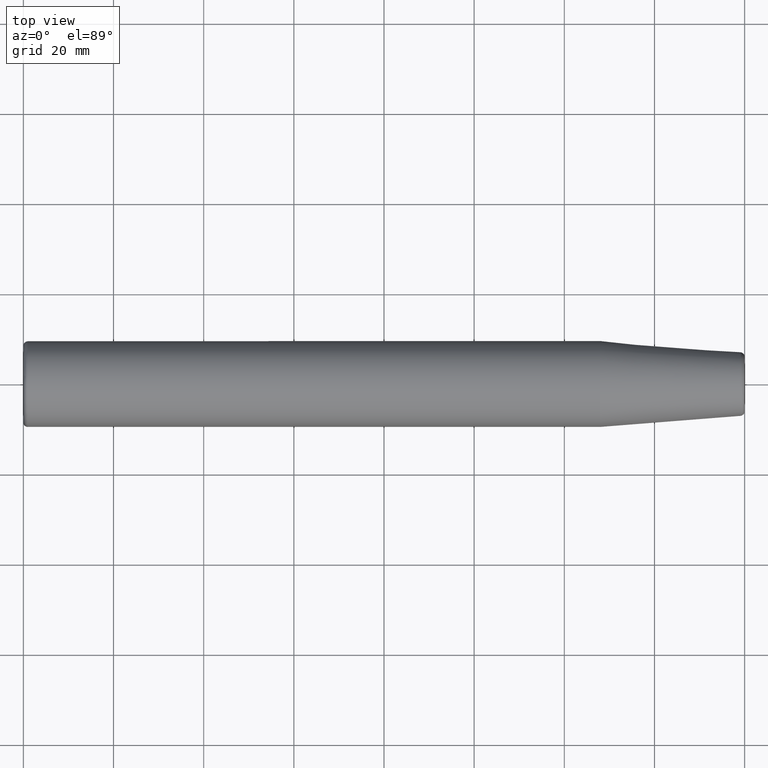
[diagram: clean part render]
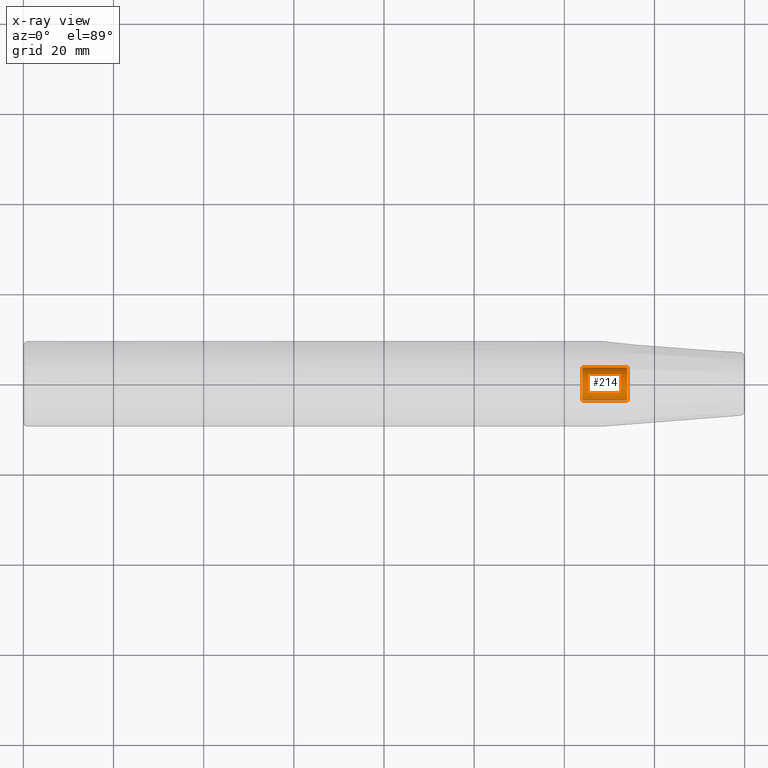
[diagram: x-ray — body ghosted, one internal face saturated and labeled with its STEP entity id]
A machine part, top view, then the same camera in x-ray: the body is ghosted and one INTERNAL B-rep face — a face not visible from any outside direction — is saturated and labeled: STEP entity #214.
In plain terms, the highlighted cylindrical surface (bore or boss wall) has radius 3.675 mm, axis along (-1, 0, 0).
Its self-contained STEP definition (entity closure, byte-faithful):
#23=LINE('',#411,#30);
#30=VECTOR('',#348,3.675);
#35=CYLINDRICAL_SURFACE('',#271,3.675);
#56=FACE_OUTER_BOUND('',#73,.T.);
#73=EDGE_LOOP('',(#193,#194,#195,#196));
#95=CIRCLE('',#270,3.67499999999999);
#96=CIRCLE('',#272,3.675);
#113=VERTEX_POINT('',#407);
#114=VERTEX_POINT('',#410);
#140=EDGE_CURVE('',#113,#113,#95,.T.);
#141=EDGE_CURVE('',#113,#114,#23,.T.);
#142=EDGE_CURVE('',#114,#114,#96,.T.);
#193=ORIENTED_EDGE('',*,*,#140,.T.);
#194=ORIENTED_EDGE('',*,*,#141,.T.);
#195=ORIENTED_EDGE('',*,*,#142,.F.);
#196=ORIENTED_EDGE('',*,*,#141,.F.);
#214=ADVANCED_FACE('',(#56),#35,.F.);
#270=AXIS2_PLACEMENT_3D('',#408,#344,#345);
#271=AXIS2_PLACEMENT_3D('',#409,#346,#347);
#272=AXIS2_PLACEMENT_3D('',#412,#349,#350);
#344=DIRECTION('center_axis',(-1.,0.,0.));
#345=DIRECTION('ref_axis',(0.,0.,1.));
#346=DIRECTION('center_axis',(-1.,0.,0.));
#347=DIRECTION('ref_axis',(0.,1.,0.));
#348=DIRECTION('',(1.,0.,0.));
#349=DIRECTION('center_axis',(-1.,0.,0.));
#350=DIRECTION('ref_axis',(0.,0.,1.));
#407=CARTESIAN_POINT('',(-36.0000000000001,-3.675,4.50057698686652E-16));
#408=CARTESIAN_POINT('Origin',(-36.0000000000001,0.,0.));
#409=CARTESIAN_POINT('Origin',(-31.0000000000001,0.,0.));
#410=CARTESIAN_POINT('',(-26.0000000000001,-3.675,4.50057698686652E-16));
#411=CARTESIAN_POINT('',(-31.0000000000001,-3.675,4.50057698686652E-16));
#412=CARTESIAN_POINT('Origin',(-26.0000000000001,0.,0.));